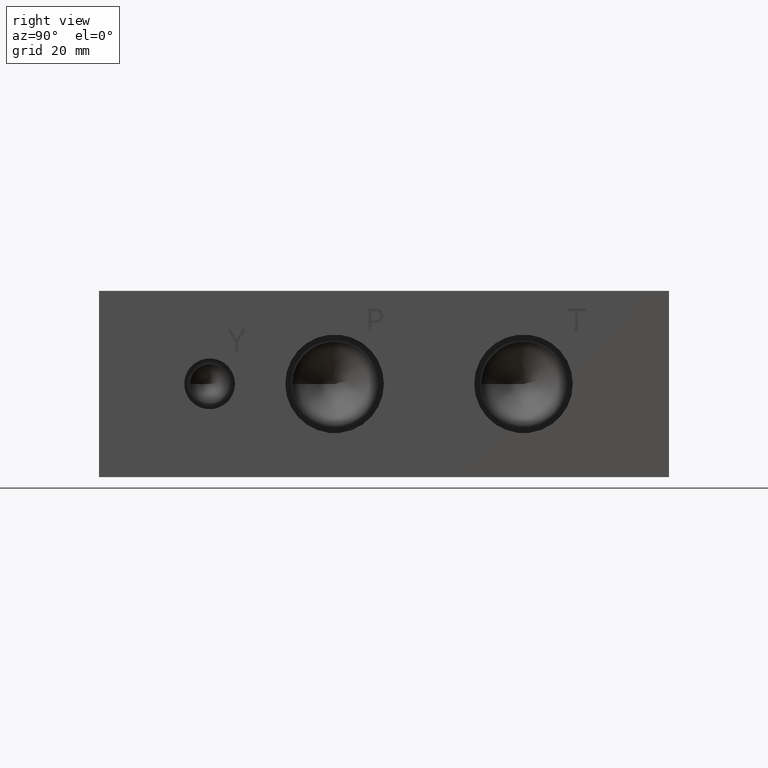
[diagram: clean part render]
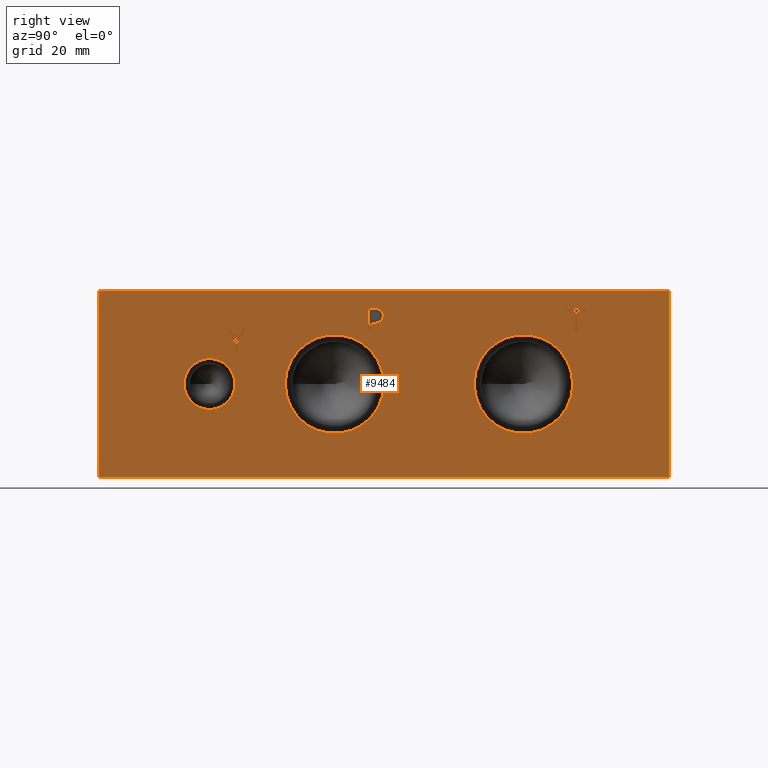
[diagram: same view with one face highlighted and labeled with its STEP entity id]
A machine part, right view. The second image highlights one B-rep face of the part: STEP entity #9484.
In plain terms, the highlighted planar face has unit normal (1, 0, 0).
Its self-contained STEP definition (entity closure, byte-faithful):
#70=CIRCLE('',#9997,13.462);
#71=CIRCLE('',#9998,13.462);
#72=CIRCLE('',#9999,13.462);
#73=CIRCLE('',#10000,13.462);
#74=CIRCLE('',#10001,6.9342);
#75=CIRCLE('',#10002,6.9342);
#199=FACE_BOUND('',#1240,.T.);
#200=FACE_BOUND('',#1241,.T.);
#201=FACE_BOUND('',#1242,.T.);
#202=FACE_BOUND('',#1243,.T.);
#203=FACE_BOUND('',#1244,.T.);
#204=FACE_BOUND('',#1245,.T.);
#284=B_SPLINE_CURVE_WITH_KNOTS('',2,(#12564,#12565,#12566,#12567),
 .UNSPECIFIED.,.F.,.F.,(3,1,3),(0.,1.,2.),.UNSPECIFIED.);
#286=B_SPLINE_CURVE_WITH_KNOTS('',2,(#12585,#12586,#12587,#12588),
 .UNSPECIFIED.,.F.,.F.,(3,1,3),(0.,1.,2.),.UNSPECIFIED.);
#288=B_SPLINE_CURVE_WITH_KNOTS('',2,(#12634,#12635,#12636,#12637),
 .UNSPECIFIED.,.F.,.F.,(3,1,3),(0.,1.,2.),.UNSPECIFIED.);
#290=B_SPLINE_CURVE_WITH_KNOTS('',2,(#12652,#12653,#12654,#12655),
 .UNSPECIFIED.,.F.,.F.,(3,1,3),(0.,1.,2.),.UNSPECIFIED.);
#732=FACE_OUTER_BOUND('',#1239,.T.);
#1239=EDGE_LOOP('',(#6126,#6127,#6128,#6129));
#1240=EDGE_LOOP('',(#6130,#6131,#6132,#6133,#6134,#6135,#6136,#6137,#6138));
#1241=EDGE_LOOP('',(#6139,#6140));
#1242=EDGE_LOOP('',(#6141,#6142));
#1243=EDGE_LOOP('',(#6143,#6144));
#1244=EDGE_LOOP('',(#6145,#6146,#6147,#6148,#6149,#6150,#6151,#6152));
#1245=EDGE_LOOP('',(#6153,#6154,#6155,#6156,#6157,#6158,#6159,#6160,#6161));
#1795=LINE('',#12408,#2747);
#1799=LINE('',#12416,#2751);
#1802=LINE('',#12422,#2754);
#1805=LINE('',#12428,#2757);
#1808=LINE('',#12434,#2760);
#1811=LINE('',#12440,#2763);
#1814=LINE('',#12446,#2766);
#1817=LINE('',#12452,#2769);
#1820=LINE('',#12457,#2772);
#1838=LINE('',#12597,#2790);
#1841=LINE('',#12603,#2793);
#1844=LINE('',#12609,#2796);
#1847=LINE('',#12615,#2799);
#1850=LINE('',#12621,#2802);
#1854=LINE('',#12664,#2806);
#1855=LINE('',#12666,#2807);
#1856=LINE('',#12668,#2808);
#1857=LINE('',#12669,#2809);
#1858=LINE('',#12684,#2810);
#1859=LINE('',#12686,#2811);
#1860=LINE('',#12688,#2812);
#1861=LINE('',#12690,#2813);
#1862=LINE('',#12692,#2814);
#1863=LINE('',#12694,#2815);
#1864=LINE('',#12696,#2816);
#1865=LINE('',#12697,#2817);
#2747=VECTOR('',#10472,10.);
#2751=VECTOR('',#10478,10.);
#2754=VECTOR('',#10483,10.);
#2757=VECTOR('',#10488,10.);
#2760=VECTOR('',#10493,10.);
#2763=VECTOR('',#10498,10.);
#2766=VECTOR('',#10503,10.);
#2769=VECTOR('',#10508,10.);
#2772=VECTOR('',#10513,10.);
#2790=VECTOR('',#10541,10.);
#2793=VECTOR('',#10546,10.);
#2796=VECTOR('',#10551,10.);
#2799=VECTOR('',#10556,10.);
#2802=VECTOR('',#10561,10.);
#2806=VECTOR('',#10569,10.);
#2807=VECTOR('',#10570,10.);
#2808=VECTOR('',#10571,10.);
#2809=VECTOR('',#10572,10.);
#2810=VECTOR('',#10585,10.);
#2811=VECTOR('',#10586,10.);
#2812=VECTOR('',#10587,10.);
#2813=VECTOR('',#10588,10.);
#2814=VECTOR('',#10589,10.);
#2815=VECTOR('',#10590,10.);
#2816=VECTOR('',#10591,10.);
#2817=VECTOR('',#10592,10.);
#3699=VERTEX_POINT('',#12406);
#3700=VERTEX_POINT('',#12407);
#3703=VERTEX_POINT('',#12415);
#3705=VERTEX_POINT('',#12421);
#3707=VERTEX_POINT('',#12427);
#3709=VERTEX_POINT('',#12433);
#3711=VERTEX_POINT('',#12439);
#3713=VERTEX_POINT('',#12445);
#3715=VERTEX_POINT('',#12451);
#3731=VERTEX_POINT('',#12562);
#3732=VERTEX_POINT('',#12563);
#3735=VERTEX_POINT('',#12584);
#3737=VERTEX_POINT('',#12596);
#3739=VERTEX_POINT('',#12602);
#3741=VERTEX_POINT('',#12608);
#3743=VERTEX_POINT('',#12614);
#3745=VERTEX_POINT('',#12620);
#3747=VERTEX_POINT('',#12633);
#3749=VERTEX_POINT('',#12662);
#3750=VERTEX_POINT('',#12663);
#3751=VERTEX_POINT('',#12665);
#3752=VERTEX_POINT('',#12667);
#3753=VERTEX_POINT('',#12670);
#3754=VERTEX_POINT('',#12671);
#3755=VERTEX_POINT('',#12674);
#3756=VERTEX_POINT('',#12675);
#3757=VERTEX_POINT('',#12678);
#3758=VERTEX_POINT('',#12679);
#3759=VERTEX_POINT('',#12682);
#3760=VERTEX_POINT('',#12683);
#3761=VERTEX_POINT('',#12685);
#3762=VERTEX_POINT('',#12687);
#3763=VERTEX_POINT('',#12689);
#3764=VERTEX_POINT('',#12691);
#3765=VERTEX_POINT('',#12693);
#3766=VERTEX_POINT('',#12695);
#4635=EDGE_CURVE('',#3699,#3700,#1795,.T.);
#4639=EDGE_CURVE('',#3703,#3699,#1799,.T.);
#4642=EDGE_CURVE('',#3705,#3703,#1802,.T.);
#4645=EDGE_CURVE('',#3707,#3705,#1805,.T.);
#4648=EDGE_CURVE('',#3709,#3707,#1808,.T.);
#4651=EDGE_CURVE('',#3711,#3709,#1811,.T.);
#4654=EDGE_CURVE('',#3713,#3711,#1814,.T.);
#4657=EDGE_CURVE('',#3715,#3713,#1817,.T.);
#4660=EDGE_CURVE('',#3700,#3715,#1820,.T.);
#4683=EDGE_CURVE('',#3731,#3732,#284,.T.);
#4687=EDGE_CURVE('',#3735,#3731,#286,.T.);
#4690=EDGE_CURVE('',#3737,#3735,#1838,.T.);
#4693=EDGE_CURVE('',#3739,#3737,#1841,.T.);
#4696=EDGE_CURVE('',#3741,#3739,#1844,.T.);
#4699=EDGE_CURVE('',#3743,#3741,#1847,.T.);
#4702=EDGE_CURVE('',#3745,#3743,#1850,.T.);
#4705=EDGE_CURVE('',#3747,#3745,#288,.T.);
#4708=EDGE_CURVE('',#3732,#3747,#290,.T.);
#4710=EDGE_CURVE('',#3749,#3750,#1854,.T.);
#4711=EDGE_CURVE('',#3750,#3751,#1855,.T.);
#4712=EDGE_CURVE('',#3752,#3751,#1856,.T.);
#4713=EDGE_CURVE('',#3749,#3752,#1857,.T.);
#4714=EDGE_CURVE('',#3753,#3754,#70,.T.);
#4715=EDGE_CURVE('',#3754,#3753,#71,.T.);
#4716=EDGE_CURVE('',#3755,#3756,#72,.T.);
#4717=EDGE_CURVE('',#3756,#3755,#73,.T.);
#4718=EDGE_CURVE('',#3757,#3758,#74,.T.);
#4719=EDGE_CURVE('',#3758,#3757,#75,.T.);
#4720=EDGE_CURVE('',#3759,#3760,#1858,.T.);
#4721=EDGE_CURVE('',#3760,#3761,#1859,.T.);
#4722=EDGE_CURVE('',#3761,#3762,#1860,.T.);
#4723=EDGE_CURVE('',#3762,#3763,#1861,.T.);
#4724=EDGE_CURVE('',#3763,#3764,#1862,.T.);
#4725=EDGE_CURVE('',#3764,#3765,#1863,.T.);
#4726=EDGE_CURVE('',#3765,#3766,#1864,.T.);
#4727=EDGE_CURVE('',#3766,#3759,#1865,.T.);
#6126=ORIENTED_EDGE('',*,*,#4710,.T.);
#6127=ORIENTED_EDGE('',*,*,#4711,.T.);
#6128=ORIENTED_EDGE('',*,*,#4712,.F.);
#6129=ORIENTED_EDGE('',*,*,#4713,.F.);
#6130=ORIENTED_EDGE('',*,*,#4635,.T.);
#6131=ORIENTED_EDGE('',*,*,#4660,.T.);
#6132=ORIENTED_EDGE('',*,*,#4657,.T.);
#6133=ORIENTED_EDGE('',*,*,#4654,.T.);
#6134=ORIENTED_EDGE('',*,*,#4651,.T.);
#6135=ORIENTED_EDGE('',*,*,#4648,.T.);
#6136=ORIENTED_EDGE('',*,*,#4645,.T.);
#6137=ORIENTED_EDGE('',*,*,#4642,.T.);
#6138=ORIENTED_EDGE('',*,*,#4639,.T.);
#6139=ORIENTED_EDGE('',*,*,#4714,.T.);
#6140=ORIENTED_EDGE('',*,*,#4715,.T.);
#6141=ORIENTED_EDGE('',*,*,#4716,.T.);
#6142=ORIENTED_EDGE('',*,*,#4717,.T.);
#6143=ORIENTED_EDGE('',*,*,#4718,.T.);
#6144=ORIENTED_EDGE('',*,*,#4719,.T.);
#6145=ORIENTED_EDGE('',*,*,#4720,.T.);
#6146=ORIENTED_EDGE('',*,*,#4721,.T.);
#6147=ORIENTED_EDGE('',*,*,#4722,.T.);
#6148=ORIENTED_EDGE('',*,*,#4723,.T.);
#6149=ORIENTED_EDGE('',*,*,#4724,.T.);
#6150=ORIENTED_EDGE('',*,*,#4725,.T.);
#6151=ORIENTED_EDGE('',*,*,#4726,.T.);
#6152=ORIENTED_EDGE('',*,*,#4727,.T.);
#6153=ORIENTED_EDGE('',*,*,#4683,.T.);
#6154=ORIENTED_EDGE('',*,*,#4708,.T.);
#6155=ORIENTED_EDGE('',*,*,#4705,.T.);
#6156=ORIENTED_EDGE('',*,*,#4702,.T.);
#6157=ORIENTED_EDGE('',*,*,#4699,.T.);
#6158=ORIENTED_EDGE('',*,*,#4696,.T.);
#6159=ORIENTED_EDGE('',*,*,#4693,.T.);
#6160=ORIENTED_EDGE('',*,*,#4690,.T.);
#6161=ORIENTED_EDGE('',*,*,#4687,.T.);
#8752=PLANE('',#9996);
#9484=ADVANCED_FACE('',(#732,#199,#200,#201,#202,#203,#204),#8752,.T.);
#9996=AXIS2_PLACEMENT_3D('',#12661,#10567,#10568);
#9997=AXIS2_PLACEMENT_3D('',#12672,#10573,#10574);
#9998=AXIS2_PLACEMENT_3D('',#12673,#10575,#10576);
#9999=AXIS2_PLACEMENT_3D('',#12676,#10577,#10578);
#10000=AXIS2_PLACEMENT_3D('',#12677,#10579,#10580);
#10001=AXIS2_PLACEMENT_3D('',#12680,#10581,#10582);
#10002=AXIS2_PLACEMENT_3D('',#12681,#10583,#10584);
#10472=DIRECTION('',(0.,1.,0.));
#10478=DIRECTION('',(0.,0.512401080946012,0.858746256029893));
#10483=DIRECTION('',(0.,0.505352400516576,-0.862913061259438));
#10488=DIRECTION('',(0.,1.,0.));
#10493=DIRECTION('',(0.,-0.509099449897538,0.860707703064184));
#10498=DIRECTION('',(0.,0.,1.));
#10503=DIRECTION('',(0.,-1.,0.));
#10508=DIRECTION('',(0.,0.,-1.));
#10513=DIRECTION('',(0.,-0.518329263750967,-0.85518113539728));
#10541=DIRECTION('',(0.,1.,0.));
#10546=DIRECTION('',(0.,0.,1.));
#10551=DIRECTION('',(0.,-1.,0.));
#10556=DIRECTION('',(0.,0.,-1.));
#10561=DIRECTION('',(0.,-1.,0.));
#10567=DIRECTION('center_axis',(1.,0.,0.));
#10568=DIRECTION('ref_axis',(0.,1.,0.));
#10569=DIRECTION('',(0.,1.,0.));
#10570=DIRECTION('',(0.,0.,1.));
#10571=DIRECTION('',(0.,1.,0.));
#10572=DIRECTION('',(0.,0.,1.));
#10573=DIRECTION('center_axis',(-1.,0.,0.));
#10574=DIRECTION('ref_axis',(0.,1.,0.));
#10575=DIRECTION('center_axis',(-1.,0.,0.));
#10576=DIRECTION('ref_axis',(0.,1.,0.));
#10577=DIRECTION('center_axis',(-1.,0.,0.));
#10578=DIRECTION('ref_axis',(0.,1.,0.));
#10579=DIRECTION('center_axis',(-1.,0.,0.));
#10580=DIRECTION('ref_axis',(0.,1.,0.));
#10581=DIRECTION('center_axis',(-1.,0.,0.));
#10582=DIRECTION('ref_axis',(0.,1.,0.));
#10583=DIRECTION('center_axis',(-1.,0.,0.));
#10584=DIRECTION('ref_axis',(0.,1.,0.));
#10585=DIRECTION('',(0.,-1.,0.));
#10586=DIRECTION('',(0.,0.,1.));
#10587=DIRECTION('',(0.,-1.,0.));
#10588=DIRECTION('',(0.,0.,1.));
#10589=DIRECTION('',(0.,1.,0.));
#10590=DIRECTION('',(0.,0.,-1.));
#10591=DIRECTION('',(0.,-1.,0.));
#10592=DIRECTION('',(0.,0.,-1.));
#12406=CARTESIAN_POINT('',(114.3,39.1950816225896,40.3859999046326));
#12407=CARTESIAN_POINT('',(114.3,40.0904624843449,40.3859999046326));
#12408=CARTESIAN_POINT('',(114.3,19.5975408112948,40.3859999046326));
#12415=CARTESIAN_POINT('',(114.3,37.5278207075969,37.5917941119134));
#12416=CARTESIAN_POINT('',(114.3,24.3306469086876,15.4743083933709));
#12421=CARTESIAN_POINT('',(114.3,35.8914349947337,40.3859999046326));
#12422=CARTESIAN_POINT('',(114.3,40.114105069619,33.1755915692153));
#12427=CARTESIAN_POINT('',(114.3,34.9548871968058,40.3859999046326));
#12428=CARTESIAN_POINT('',(114.3,17.4774435984029,40.3859999046326));
#12433=CARTESIAN_POINT('',(114.3,37.1007137448056,36.758163654417));
#12434=CARTESIAN_POINT('',(114.3,40.3462435217765,31.2711169091785));
#12439=CARTESIAN_POINT('',(114.3,37.1007137448056,34.036));
#12440=CARTESIAN_POINT('',(114.3,37.1007137448056,17.018));
#12445=CARTESIAN_POINT('',(114.3,37.9446359363451,34.036));
#12446=CARTESIAN_POINT('',(114.3,18.9723179681725,34.036));
#12451=CARTESIAN_POINT('',(114.3,37.9446359363451,36.8456433937839));
#12452=CARTESIAN_POINT('',(114.3,37.9446359363451,18.422821696892));
#12457=CARTESIAN_POINT('',(114.3,25.7541475409013,16.7327992305577));
#12562=CARTESIAN_POINT('',(114.3,76.8239672023594,45.5777681439707));
#12563=CARTESIAN_POINT('',(114.3,77.580409654532,44.059737372604));
#12564=CARTESIAN_POINT('Ctrl Pts',(114.3,76.8239672023594,45.5777681439707));
#12565=CARTESIAN_POINT('Ctrl Pts',(114.3,77.1790320268486,45.3359123939564));
#12566=CARTESIAN_POINT('Ctrl Pts',(114.3,77.580409654532,44.5897616758269));
#12567=CARTESIAN_POINT('Ctrl Pts',(114.3,77.580409654532,44.059737372604));
#12584=CARTESIAN_POINT('',(114.3,75.1618521543883,45.9739999046326));
#12585=CARTESIAN_POINT('Ctrl Pts',(114.3,75.1618521543883,45.9739999046326));
#12586=CARTESIAN_POINT('Ctrl Pts',(114.3,75.7278975267624,45.9739999046326));
#12587=CARTESIAN_POINT('Ctrl Pts',(114.3,76.520361048086,45.7887486918556));
#12588=CARTESIAN_POINT('Ctrl Pts',(114.3,76.8239672023594,45.5777681439707));
#12596=CARTESIAN_POINT('',(114.3,73.5666333776978,45.9739999046326));
#12597=CARTESIAN_POINT('',(114.3,36.7833166888489,45.9739999046326));
#12602=CARTESIAN_POINT('',(114.3,73.5666333776978,39.624));
#12603=CARTESIAN_POINT('',(114.3,73.5666333776978,19.812));
#12608=CARTESIAN_POINT('',(114.3,74.4105555692373,39.624));
#12609=CARTESIAN_POINT('',(114.3,37.2052777846186,39.624));
#12614=CARTESIAN_POINT('',(114.3,74.4105555692373,41.9910988299279));
#12615=CARTESIAN_POINT('',(114.3,74.4105555692373,20.9955494149639));
#12620=CARTESIAN_POINT('',(114.3,75.1258310852372,41.9910988299279));
#12621=CARTESIAN_POINT('',(114.3,37.5629155426186,41.9910988299279));
#12633=CARTESIAN_POINT('',(114.3,77.0246560162011,42.6497698086904));
#12634=CARTESIAN_POINT('Ctrl Pts',(114.3,77.0246560162011,42.6497698086904));
#12635=CARTESIAN_POINT('Ctrl Pts',(114.3,76.6953205268198,42.3255801863307));
#12636=CARTESIAN_POINT('Ctrl Pts',(114.3,75.8050855320861,41.9910988299279));
#12637=CARTESIAN_POINT('Ctrl Pts',(114.3,75.1258310852372,41.9910988299279));
#12652=CARTESIAN_POINT('Ctrl Pts',(114.3,77.580409654532,44.059737372604));
#12653=CARTESIAN_POINT('Ctrl Pts',(114.3,77.580409654532,43.6480680108774));
#12654=CARTESIAN_POINT('Ctrl Pts',(114.3,77.2870952343018,42.9070631597695));
#12655=CARTESIAN_POINT('Ctrl Pts',(114.3,77.0246560162011,42.6497698086904));
#12661=CARTESIAN_POINT('Origin',(114.3,0.,0.));
#12662=CARTESIAN_POINT('',(114.3,0.,0.));
#12663=CARTESIAN_POINT('',(114.3,155.575,0.));
#12664=CARTESIAN_POINT('',(114.3,0.,0.));
#12665=CARTESIAN_POINT('',(114.3,155.575,50.8));
#12666=CARTESIAN_POINT('',(114.3,155.575,0.));
#12667=CARTESIAN_POINT('',(114.3,0.,50.8));
#12668=CARTESIAN_POINT('',(114.3,0.,50.8));
#12669=CARTESIAN_POINT('',(114.3,0.,0.));
#12670=CARTESIAN_POINT('',(114.3,77.7494,25.4));
#12671=CARTESIAN_POINT('',(114.3,50.8254,25.4));
#12672=CARTESIAN_POINT('Origin',(114.3,64.2874,25.4));
#12673=CARTESIAN_POINT('Origin',(114.3,64.2874,25.4));
#12674=CARTESIAN_POINT('',(114.3,129.3114,25.4));
#12675=CARTESIAN_POINT('',(114.3,102.3874,25.4));
#12676=CARTESIAN_POINT('Origin',(114.3,115.8494,25.4));
#12677=CARTESIAN_POINT('Origin',(114.3,115.8494,25.4));
#12678=CARTESIAN_POINT('',(114.3,37.1094,25.4));
#12679=CARTESIAN_POINT('',(114.3,23.241,25.4));
#12680=CARTESIAN_POINT('Origin',(114.3,30.1752,25.4));
#12681=CARTESIAN_POINT('Origin',(114.3,30.1752,25.4));
#12682=CARTESIAN_POINT('',(114.3,130.756565271453,39.624));
#12683=CARTESIAN_POINT('',(114.3,129.912643079913,39.624));
#12684=CARTESIAN_POINT('',(114.3,65.3782826357265,39.624));
#12685=CARTESIAN_POINT('',(114.3,129.912643079913,45.2227033194816));
#12686=CARTESIAN_POINT('',(114.3,129.912643079913,19.812));
#12687=CARTESIAN_POINT('',(114.3,127.782254132978,45.2227033194816));
#12688=CARTESIAN_POINT('',(114.3,64.9563215399567,45.2227033194816));
#12689=CARTESIAN_POINT('',(114.3,127.782254132978,45.9739999046326));
#12690=CARTESIAN_POINT('',(114.3,127.782254132978,22.6113516597408));
#12691=CARTESIAN_POINT('',(114.3,132.886954218388,45.9739999046326));
#12692=CARTESIAN_POINT('',(114.3,63.8911270664892,45.9739999046326));
#12693=CARTESIAN_POINT('',(114.3,132.886954218388,45.2227033194816));
#12694=CARTESIAN_POINT('',(114.3,132.886954218388,22.9869999523163));
#12695=CARTESIAN_POINT('',(114.3,130.756565271453,45.2227033194816));
#12696=CARTESIAN_POINT('',(114.3,66.443477109194,45.2227033194816));
#12697=CARTESIAN_POINT('',(114.3,130.756565271453,22.6113516597408));